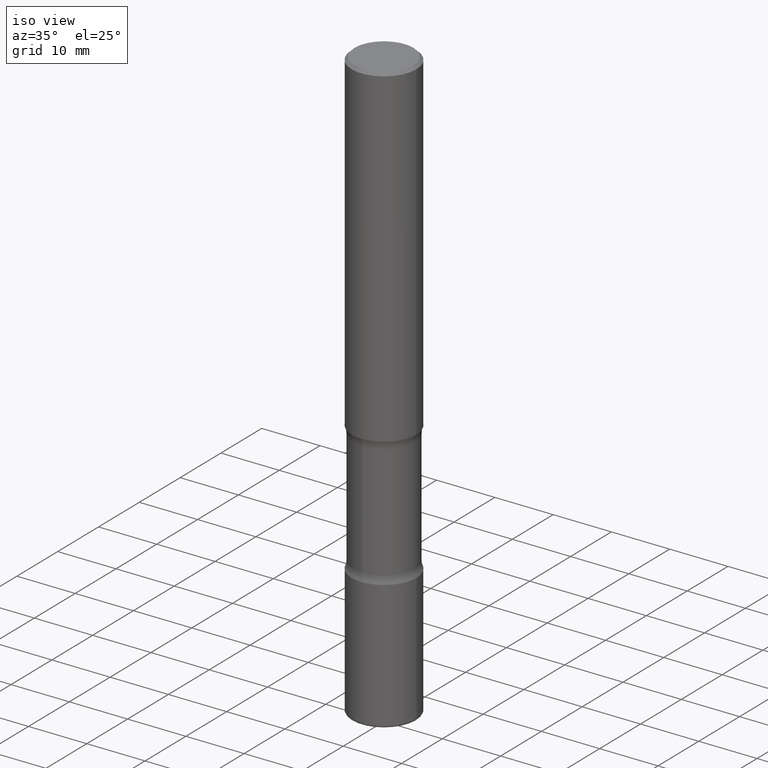
[diagram: clean part render]
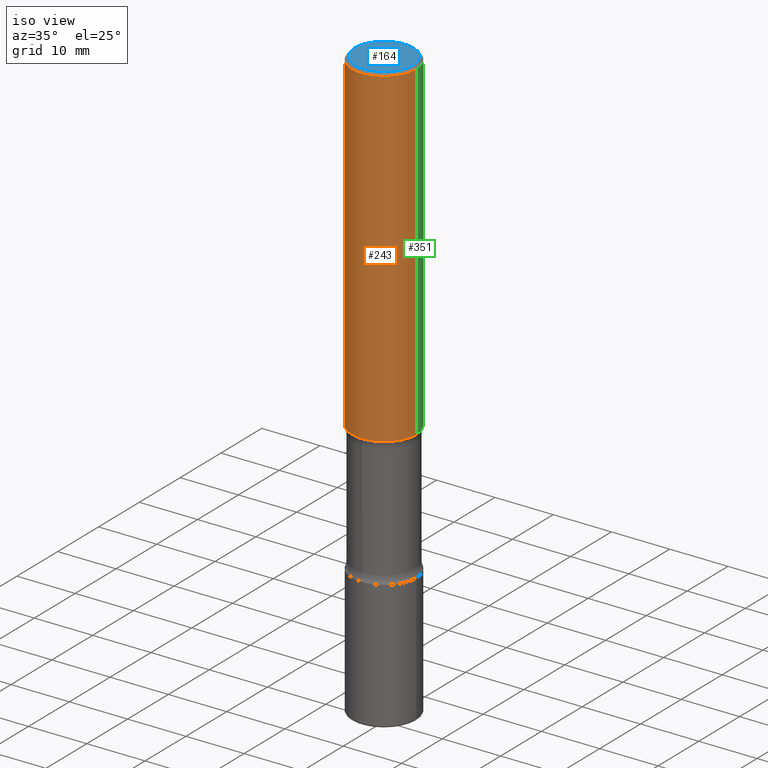
[diagram: same view with three faces highlighted in distinct colors, each labeled with its STEP entity id]
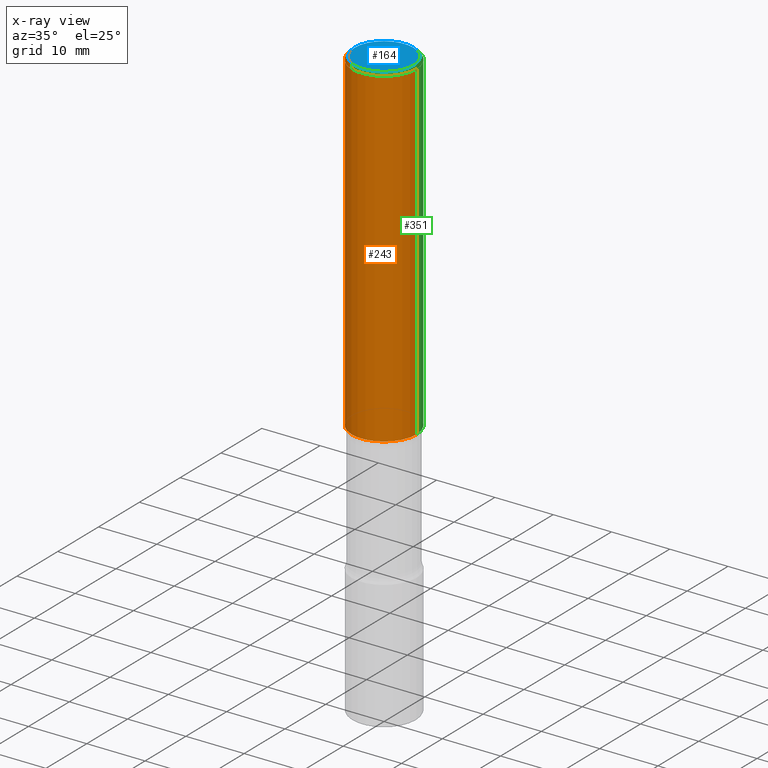
[diagram: x-ray of the same camera — body ghosted, the three highlighted faces saturated]
A machine part, iso view with three faces highlighted in distinct colors.
The next image is the same camera in x-ray (body ghosted, the three faces saturated) — at least one of them is partly hidden behind the body in this view.
Their STEP definitions:

[orange] entity #243 — the highlighted cylindrical surface (partial cylindrical patch) has radius 5.5563 mm, axis along (-0, 0, 1).
#9 = ORIENTED_EDGE ( 'NONE', *, *, #167, .T. ) ;
#11 = EDGE_LOOP ( 'NONE', ( #329, #9, #542, #165 ) ) ;
#13 = DIRECTION ( 'NONE',  ( 1.000000000000000000, -6.982962677686266711E-15, 0.000000000000000000 ) ) ;
#31 = EDGE_CURVE ( 'NONE', #201, #124, #464, .T. ) ;
#34 = CARTESIAN_POINT ( 'NONE',  ( -0.2187500000000000278, 1.554312234475219354E-15, -1.076017050993260762E-29 ) ) ;
#68 = AXIS2_PLACEMENT_3D ( 'NONE', #218, #305, #13 ) ;
#74 = CARTESIAN_POINT ( 'NONE',  ( 5.502304813916556222E-29, -7.855833012397075293E-15, -2.249999999999999556 ) ) ;
#78 = AXIS2_PLACEMENT_3D ( 'NONE', #74, #503, #122 ) ;
#100 = CARTESIAN_POINT ( 'NONE',  ( 0.000000000000000000, 0.000000000000000000, 0.000000000000000000 ) ) ;
#122 = DIRECTION ( 'NONE',  ( 1.000000000000000000, -6.982962677686263555E-15, 0.000000000000000000 ) ) ;
#124 = VERTEX_POINT ( 'NONE', #545 ) ;
#138 = DIRECTION ( 'NONE',  ( -2.445468806185136877E-29, 3.491481338843145188E-15, 1.000000000000000000 ) ) ;
#144 = FACE_OUTER_BOUND ( 'NONE', #11, .T. ) ;
#145 = VECTOR ( 'NONE', #138, 39.37007874015748143 ) ;
#155 = VERTEX_POINT ( 'NONE', #347 ) ;
#158 = EDGE_CURVE ( 'NONE', #155, #559, #296, .T. ) ;
#165 = ORIENTED_EDGE ( 'NONE', *, *, #343, .F. ) ;
#167 = EDGE_CURVE ( 'NONE', #201, #155, #358, .T. ) ;
#201 = VERTEX_POINT ( 'NONE', #396 ) ;
#218 = CARTESIAN_POINT ( 'NONE',  ( 4.890937612370289799E-31, -6.982962677686315028E-17, -0.02000000000000006981 ) ) ;
#243 = ADVANCED_FACE ( 'NONE', ( #144 ), #555, .T. ) ;
#264 = DIRECTION ( 'NONE',  ( 1.000000000000000000, -6.982962677686266711E-15, 4.876176775795935232E-29 ) ) ;
#296 = LINE ( 'NONE', #424, #504 ) ;
#305 = DIRECTION ( 'NONE',  ( -2.445468806185136597E-29, 3.491481338843145583E-15, 1.000000000000000000 ) ) ;
#311 = CIRCLE ( 'NONE', #68, 0.2187499999999998890 ) ;
#329 = ORIENTED_EDGE ( 'NONE', *, *, #31, .F. ) ;
#330 = AXIS2_PLACEMENT_3D ( 'NONE', #100, #558, #264 ) ;
#343 = EDGE_CURVE ( 'NONE', #124, #559, #311, .T. ) ;
#347 = CARTESIAN_POINT ( 'NONE',  ( 0.2187500000000001388, -9.383356098140946925E-15, -2.249999999999999556 ) ) ;
#358 = CIRCLE ( 'NONE', #78, 0.2187500000000001388 ) ;
#396 = CARTESIAN_POINT ( 'NONE',  ( -0.2187500000000001388, -2.408519085111747378E-15, -2.249999999999999556 ) ) ;
#424 = CARTESIAN_POINT ( 'NONE',  ( 0.2187500000000000278, -1.527523085743871040E-15, 1.066663669705361025E-29 ) ) ;
#430 = CARTESIAN_POINT ( 'NONE',  ( 0.2187499999999998890, -1.570563563789384841E-15, -0.02000000000000006981 ) ) ;
#464 = LINE ( 'NONE', #34, #145 ) ;
#503 = DIRECTION ( 'NONE',  ( -2.445468806185136597E-29, 3.491481338843145583E-15, 1.000000000000000000 ) ) ;
#504 = VECTOR ( 'NONE', #548, 39.37007874015748143 ) ;
#542 = ORIENTED_EDGE ( 'NONE', *, *, #158, .T. ) ;
#545 = CARTESIAN_POINT ( 'NONE',  ( -0.2187499999999998890, 1.457693458967006953E-15, -0.02000000000000006981 ) ) ;
#548 = DIRECTION ( 'NONE',  ( -2.445468806185136877E-29, 3.491481338843145188E-15, 1.000000000000000000 ) ) ;
#555 = CYLINDRICAL_SURFACE ( 'NONE', #330, 0.2187500000000000278 ) ;
#558 = DIRECTION ( 'NONE',  ( -2.445468806185136597E-29, 3.491481338843145583E-15, 1.000000000000000000 ) ) ;
#559 = VERTEX_POINT ( 'NONE', #430 ) ;

[blue] entity #164 — the highlighted planar face has unit normal (0, -0, -1).
#39 = PLANE ( 'NONE',  #203 ) ;
#46 = AXIS2_PLACEMENT_3D ( 'NONE', #131, #174, #382 ) ;
#49 = AXIS2_PLACEMENT_3D ( 'NONE', #410, #103, #365 ) ;
#73 = CARTESIAN_POINT ( 'NONE',  ( 1.387863832190144049E-15, 0.1987499999999998157, -6.939319160950745885E-16 ) ) ;
#102 = EDGE_LOOP ( 'NONE', ( #285, #327 ) ) ;
#103 = DIRECTION ( 'NONE',  ( -2.445468806185136597E-29, 3.491481338843145583E-15, 1.000000000000000000 ) ) ;
#131 = CARTESIAN_POINT ( 'NONE',  ( 0.000000000000000000, 0.000000000000000000, 0.000000000000000000 ) ) ;
#143 = EDGE_CURVE ( 'NONE', #418, #289, #168, .T. ) ;
#159 = DIRECTION ( 'NONE',  ( 2.438088387897960049E-29, -3.491481338843145188E-15, -1.000000000000000000 ) ) ;
#161 = CIRCLE ( 'NONE', #49, 0.1987499999999998157 ) ;
#164 = ADVANCED_FACE ( 'NONE', ( #409 ), #39, .F. ) ;
#168 = CIRCLE ( 'NONE', #46, 0.1987499999999998157 ) ;
#174 = DIRECTION ( 'NONE',  ( -2.445468806185136597E-29, 3.491481338843145583E-15, 1.000000000000000000 ) ) ;
#180 = CARTESIAN_POINT ( 'NONE',  ( -0.1987499999999998157, 1.422778645578575501E-15, -9.827974342635076689E-30 ) ) ;
#203 = AXIS2_PLACEMENT_3D ( 'NONE', #73, #159, #346 ) ;
#285 = ORIENTED_EDGE ( 'NONE', *, *, #363, .T. ) ;
#289 = VERTEX_POINT ( 'NONE', #180 ) ;
#327 = ORIENTED_EDGE ( 'NONE', *, *, #143, .T. ) ;
#346 = DIRECTION ( 'NONE',  ( -1.000000000000000000, 6.982962677686265922E-15, -4.876176775795935793E-29 ) ) ;
#361 = CARTESIAN_POINT ( 'NONE',  ( 0.1987499999999998157, -1.467043770423237861E-15, 9.982525199991778089E-30 ) ) ;
#363 = EDGE_CURVE ( 'NONE', #289, #418, #161, .T. ) ;
#365 = DIRECTION ( 'NONE',  ( 1.000000000000000000, -6.982962677686266711E-15, 4.876176775795936353E-29 ) ) ;
#382 = DIRECTION ( 'NONE',  ( 1.000000000000000000, -6.982962677686266711E-15, 4.876176775795936353E-29 ) ) ;
#409 = FACE_OUTER_BOUND ( 'NONE', #102, .T. ) ;
#410 = CARTESIAN_POINT ( 'NONE',  ( 0.000000000000000000, 0.000000000000000000, 0.000000000000000000 ) ) ;
#418 = VERTEX_POINT ( 'NONE', #361 ) ;

[green] entity #351 — the highlighted cylindrical surface (partial cylindrical patch) has radius 5.5563 mm, axis along (-0, 0, 1).
#7 = FACE_OUTER_BOUND ( 'NONE', #109, .T. ) ;
#31 = EDGE_CURVE ( 'NONE', #201, #124, #464, .T. ) ;
#34 = CARTESIAN_POINT ( 'NONE',  ( -0.2187500000000000278, 1.554312234475219354E-15, -1.076017050993260762E-29 ) ) ;
#36 = EDGE_CURVE ( 'NONE', #559, #124, #300, .T. ) ;
#72 = ORIENTED_EDGE ( 'NONE', *, *, #36, .F. ) ;
#76 = ORIENTED_EDGE ( 'NONE', *, *, #158, .F. ) ;
#109 = EDGE_LOOP ( 'NONE', ( #314, #395, #72, #76 ) ) ;
#124 = VERTEX_POINT ( 'NONE', #545 ) ;
#126 = DIRECTION ( 'NONE',  ( 1.000000000000000000, -6.982962677686266711E-15, 0.000000000000000000 ) ) ;
#138 = DIRECTION ( 'NONE',  ( -2.445468806185136877E-29, 3.491481338843145188E-15, 1.000000000000000000 ) ) ;
#145 = VECTOR ( 'NONE', #138, 39.37007874015748143 ) ;
#155 = VERTEX_POINT ( 'NONE', #347 ) ;
#158 = EDGE_CURVE ( 'NONE', #155, #559, #296, .T. ) ;
#178 = DIRECTION ( 'NONE',  ( -2.445468806185136597E-29, 3.491481338843145583E-15, 1.000000000000000000 ) ) ;
#194 = AXIS2_PLACEMENT_3D ( 'NONE', #434, #178, #307 ) ;
#201 = VERTEX_POINT ( 'NONE', #396 ) ;
#233 = CARTESIAN_POINT ( 'NONE',  ( 0.000000000000000000, 0.000000000000000000, 0.000000000000000000 ) ) ;
#255 = CARTESIAN_POINT ( 'NONE',  ( 4.890937612370289799E-31, -6.982962677686315028E-17, -0.02000000000000006981 ) ) ;
#296 = LINE ( 'NONE', #424, #504 ) ;
#300 = CIRCLE ( 'NONE', #468, 0.2187499999999998890 ) ;
#307 = DIRECTION ( 'NONE',  ( 1.000000000000000000, -6.982962677686263555E-15, 0.000000000000000000 ) ) ;
#314 = ORIENTED_EDGE ( 'NONE', *, *, #520, .T. ) ;
#317 = DIRECTION ( 'NONE',  ( 1.000000000000000000, -6.982962677686266711E-15, 4.876176775795935232E-29 ) ) ;
#347 = CARTESIAN_POINT ( 'NONE',  ( 0.2187500000000001388, -9.383356098140946925E-15, -2.249999999999999556 ) ) ;
#351 = ADVANCED_FACE ( 'NONE', ( #7 ), #371, .T. ) ;
#371 = CYLINDRICAL_SURFACE ( 'NONE', #531, 0.2187500000000000278 ) ;
#395 = ORIENTED_EDGE ( 'NONE', *, *, #31, .T. ) ;
#396 = CARTESIAN_POINT ( 'NONE',  ( -0.2187500000000001388, -2.408519085111747378E-15, -2.249999999999999556 ) ) ;
#405 = CIRCLE ( 'NONE', #194, 0.2187500000000001388 ) ;
#424 = CARTESIAN_POINT ( 'NONE',  ( 0.2187500000000000278, -1.527523085743871040E-15, 1.066663669705361025E-29 ) ) ;
#430 = CARTESIAN_POINT ( 'NONE',  ( 0.2187499999999998890, -1.570563563789384841E-15, -0.02000000000000006981 ) ) ;
#433 = DIRECTION ( 'NONE',  ( -2.445468806185136597E-29, 3.491481338843145583E-15, 1.000000000000000000 ) ) ;
#434 = CARTESIAN_POINT ( 'NONE',  ( 5.502304813916556222E-29, -7.855833012397075293E-15, -2.249999999999999556 ) ) ;
#464 = LINE ( 'NONE', #34, #145 ) ;
#468 = AXIS2_PLACEMENT_3D ( 'NONE', #255, #433, #126 ) ;
#504 = VECTOR ( 'NONE', #548, 39.37007874015748143 ) ;
#520 = EDGE_CURVE ( 'NONE', #155, #201, #405, .T. ) ;
#531 = AXIS2_PLACEMENT_3D ( 'NONE', #233, #536, #317 ) ;
#536 = DIRECTION ( 'NONE',  ( -2.445468806185136597E-29, 3.491481338843145583E-15, 1.000000000000000000 ) ) ;
#545 = CARTESIAN_POINT ( 'NONE',  ( -0.2187499999999998890, 1.457693458967006953E-15, -0.02000000000000006981 ) ) ;
#548 = DIRECTION ( 'NONE',  ( -2.445468806185136877E-29, 3.491481338843145188E-15, 1.000000000000000000 ) ) ;
#559 = VERTEX_POINT ( 'NONE', #430 ) ;